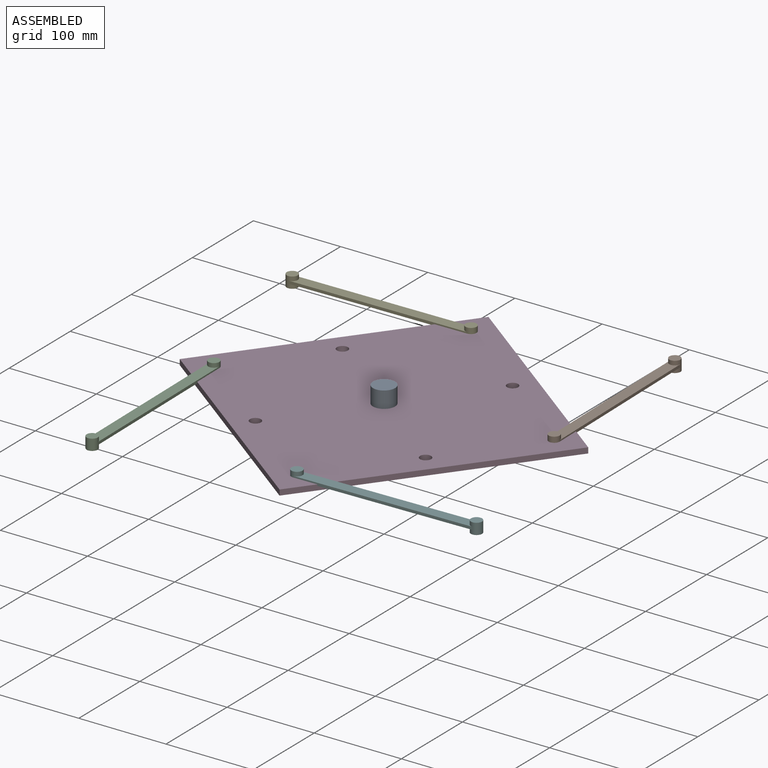
[diagram: assembled view]
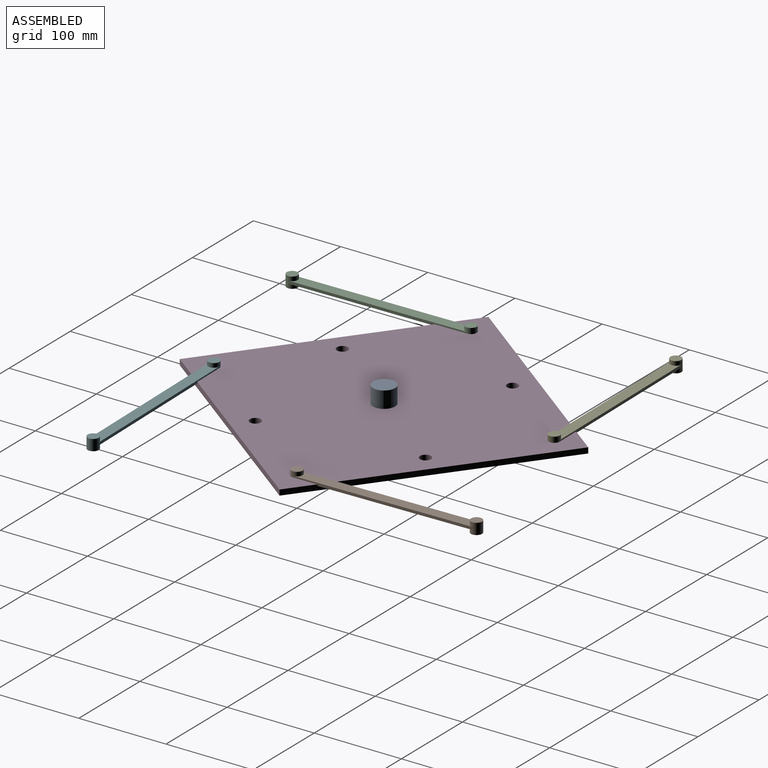
[diagram: assembled view, second angle]
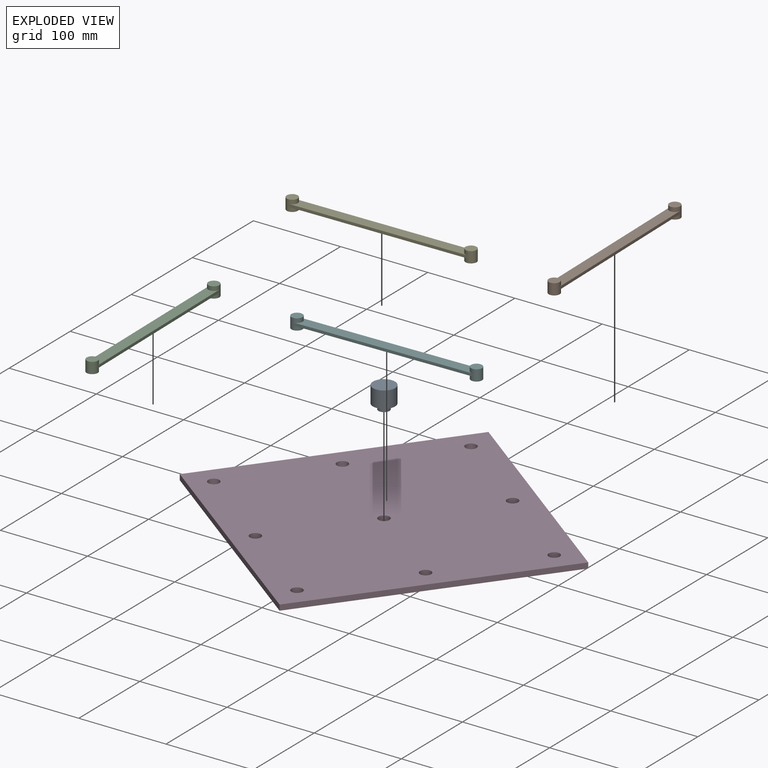
[diagram: exploded view]
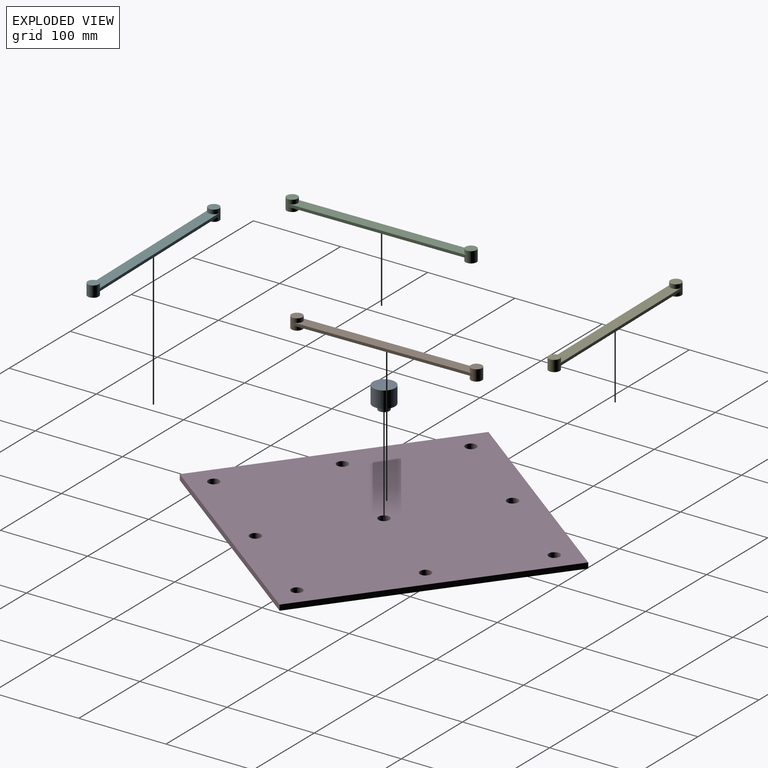
[diagram: exploded view, second angle]
ASSEMBLY  parts=6 mates=5
PART A: 5 faces, bbox 25.4x25.4x25.4 mm
  f0: cylinder r=6.35mm len=12.7mm, axis (0,1,0), area 253.4mm2, adj f1,f3
  f1: plane 12.7x12.7mm, normal (0,1,0), area 126.7mm2, adj f0
  f2: cylinder r=12.7mm len=25.4mm, axis (0,-1,0), area 1520.1mm2, adj f3,f4
  f3: plane 25.4x25.4mm, normal (0,1,0), area 380mm2, adj f0,f2
  f4: plane 25.4x25.4mm, normal (0,-1,0), area 506.7mm2, adj f2
PART B: 10 faces, bbox 215.9x12.7x12.7 mm
  f0: cylinder r=6.35mm len=12.7mm, axis (0,1,0), area 443.4mm2, adj f1,f2,f6,f7,f8,f9
  f1: plane 12.7x12.7mm, normal (0,-1,0), area 126.7mm2, adj f0
  f2: plane 12.7x12.7mm, normal (0,1,0), area 126.7mm2, adj f0
  f3: cylinder r=6.35mm len=12.7mm, axis (0,1,0), area 443.4mm2, adj f4,f5,f6,f7,f8,f9
  f4: plane 12.7x12.7mm, normal (0,-1,0), area 126.7mm2, adj f3
  f5: plane 12.7x12.7mm, normal (0,1,0), area 126.7mm2, adj f3
  f6: plane 203.2x3.18mm, normal (0,0,-1), area 645.2mm2, adj f0,f3,f8,f9
  f7: plane 203.2x3.18mm, normal (0,0,1), area 645.2mm2, adj f0,f3,f8,f9
  f8: plane 203.2x12.7mm, normal (0,-1,0), area 2454mm2, adj f0,f3,f6,f7
  f9: plane 203.2x12.7mm, normal (0,1,0), area 2454mm2, adj f0,f3,f6,f7
PART C: same geometry as B
PART D: 15 faces, bbox 304.8x304.8x6.4 mm
  f0: plane 304.8x6.35mm, normal (0,1,0), area 1935.5mm2, adj f1,f3,f13,f14
  f1: plane 304.8x6.35mm, normal (-1,0,0), area 1935.5mm2, adj f0,f2,f13,f14
  f2: plane 304.8x6.35mm, normal (0,-1,0), area 1935.5mm2, adj f1,f3,f13,f14
  f3: plane 304.8x6.35mm, normal (1,0,0), area 1935.5mm2, adj f0,f2,f13,f14
  f4: cylinder r=6.35mm len=12.7mm, axis (0,0,-1), area 253.4mm2, adj f13,f14
  f5: cylinder r=6.35mm len=12.7mm, axis (0,0,-1), area 253.4mm2, adj f13,f14
  f6: cylinder r=6.35mm len=12.7mm, axis (0,0,-1), area 253.4mm2, adj f13,f14
  f7: cylinder r=6.35mm len=12.7mm, axis (0,0,-1), area 253.4mm2, adj f13,f14
  f8: cylinder r=6.35mm len=12.7mm, axis (0,0,-1), area 253.4mm2, adj f13,f14
  f9: cylinder r=6.35mm len=12.7mm, axis (0,0,-1), area 253.4mm2, adj f13,f14
  f10: cylinder r=6.35mm len=12.7mm, axis (0,0,-1), area 253.4mm2, adj f13,f14
  f11: cylinder r=6.35mm len=12.7mm, axis (0,0,-1), area 253.4mm2, adj f13,f14
  f12: cylinder r=6.35mm len=12.7mm, axis (0,0,-1), area 253.4mm2, adj f13,f14
  f13: plane 304.8x304.8mm, normal (0,0,1), area 91762.9mm2, adj f0,f1,f2,f3,f4,f5,f6,f7
  f14: plane 304.8x304.8mm, normal (0,0,-1), area 91762.9mm2, adj f0,f1,f2,f3,f4,f5,f6,f7
PART E: same geometry as B
PART F: same geometry as B
PLACE A rot(axis=(-0.58,-0.58,0.58),120deg) t=(0,0,-25.4)mm
PLACE B rot(axis=(0.58,-0.57,-0.57),119.4deg) t=(175.95,126.31,-19.05)mm
PLACE C rot(axis=(0.58,-0.57,-0.57),119.6deg) t=(-176.52,-126.32,-19.05)mm
PLACE D rot(axis=(0,0,-1),127.1deg) t=(0,0,-25.4)mm
PLACE E rot(axis=(1,0.01,0.01),90deg) t=(-126.32,176.56,-19.05)mm
PLACE F rot(axis=(0.01,-0.71,-0.71),179.2deg) t=(126.31,-175.93,-19.05)mm
MATE revolute E.f0 <-> D.f7  axis (0,0,-1) through (-24.73,177.89,-25.4)mm
MATE revolute A.f0 <-> D.f12  axis (0,0,-1) through (0,0,-25.4)mm
MATE revolute F.f0 <-> D.f9  axis (0,0,-1) through (24.73,-177.89,-25.4)mm
MATE revolute C.f3 <-> D.f10  axis (0,0,-1) through (-177.89,-24.73,-25.4)mm
MATE revolute B.f0 <-> D.f4  axis (0,0,-1) through (177.89,24.73,-25.4)mm
